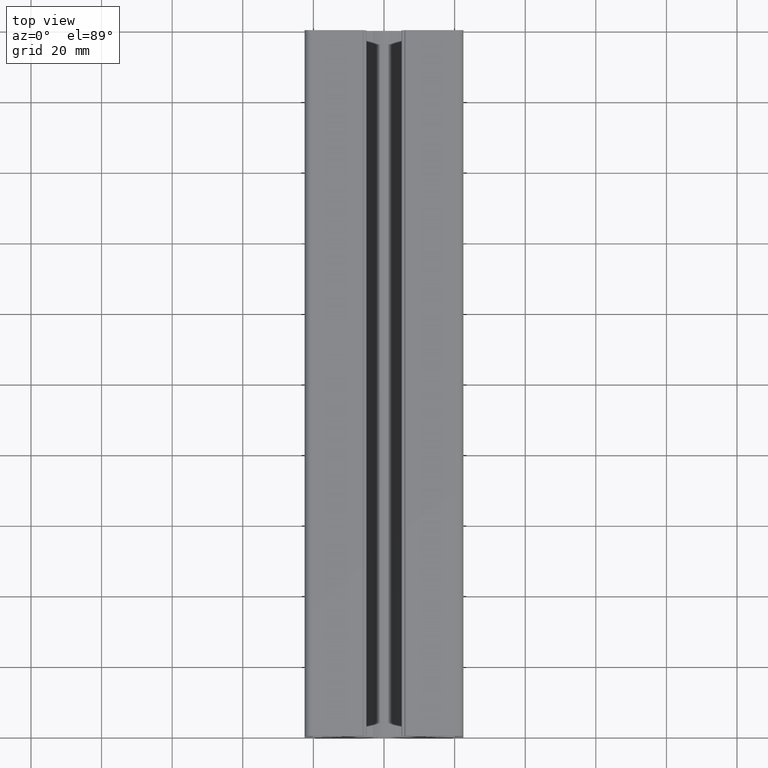
[diagram: clean part render]
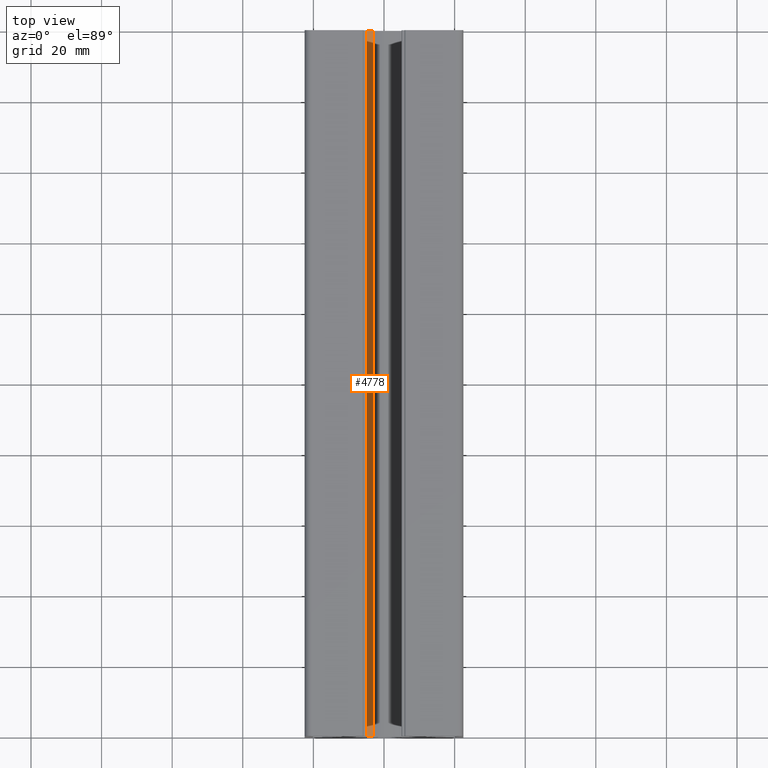
[diagram: same view with one face highlighted and labeled with its STEP entity id]
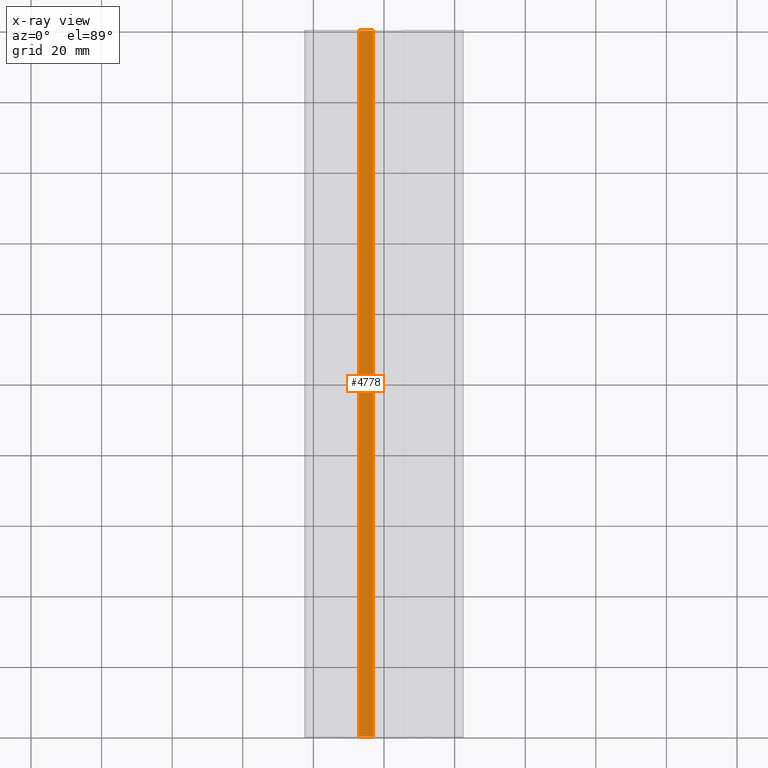
[diagram: x-ray of the same camera — body ghosted, the highlighted face saturated]
A machine part, top view. The second image highlights one B-rep face of the part: STEP entity #4778.
The next image is the same camera in x-ray: the body ghosted, the highlighted face saturated — about 0% of this face is hidden behind the body in this view.
In plain terms, the highlighted planar face has unit normal (-0, 0, 1).
Its self-contained STEP definition (entity closure, byte-faithful):
#197 = ORIENTED_EDGE ( 'NONE', *, *, #3471, .F. ) ;
#292 = CARTESIAN_POINT ( 'NONE',  ( -7.157215306522769700, 0.0000000000000000000, 1.999820312401750200 ) ) ;
#329 = CARTESIAN_POINT ( 'NONE',  ( -7.157215306522772400, 200.0000000000000000, 1.999820312401751500 ) ) ;
#339 = EDGE_CURVE ( 'NONE', #702, #2154, #3042, .T. ) ;
#343 = DIRECTION ( 'NONE',  ( -0.0000000000000000000, -1.000000000000000000, -0.0000000000000000000 ) ) ;
#373 = EDGE_CURVE ( 'NONE', #702, #1314, #3036, .T. ) ;
#492 = CARTESIAN_POINT ( 'NONE',  ( -7.157215306522767900, 0.0000000000000000000, 1.999820312401749700 ) ) ;
#494 = ORIENTED_EDGE ( 'NONE', *, *, #2412, .T. ) ;
#702 = VERTEX_POINT ( 'NONE', #329 ) ;
#854 = FACE_OUTER_BOUND ( 'NONE', #4816, .T. ) ;
#904 = PLANE ( 'NONE',  #3349 ) ;
#1163 = CARTESIAN_POINT ( 'NONE',  ( -5.329070518200750100E-014, 200.0000000000000000, 1.999820312401750200 ) ) ;
#1314 = VERTEX_POINT ( 'NONE', #492 ) ;
#1558 = DIRECTION ( 'NONE',  ( 1.000000000000000000, 0.0000000000000000000, 3.289076913218499900E-012 ) ) ;
#1694 = CARTESIAN_POINT ( 'NONE',  ( -7.157215306522769700, 0.0000000000000000000, 1.999820312401750200 ) ) ;
#1768 = DIRECTION ( 'NONE',  ( -3.289076913218499900E-012, 0.0000000000000000000, 1.000000000000000000 ) ) ;
#1886 = VECTOR ( 'NONE', #1558, 1000.000000000000000 ) ;
#2139 = VECTOR ( 'NONE', #343, 1000.000000000000000 ) ;
#2154 = VERTEX_POINT ( 'NONE', #2275 ) ;
#2227 = LINE ( 'NONE', #292, #1886 ) ;
#2275 = CARTESIAN_POINT ( 'NONE',  ( -3.122919853847287500, 200.0000000000000000, 1.999820312408385800 ) ) ;
#2412 = EDGE_CURVE ( 'NONE', #1314, #2664, #2227, .T. ) ;
#2458 = CARTESIAN_POINT ( 'NONE',  ( -7.157215306522769700, 0.0000000000000000000, 1.999820312401750200 ) ) ;
#2659 = ORIENTED_EDGE ( 'NONE', *, *, #339, .F. ) ;
#2664 = VERTEX_POINT ( 'NONE', #4712 ) ;
#2868 = LINE ( 'NONE', #3253, #2139 ) ;
#2920 = VECTOR ( 'NONE', #3654, 1000.000000000000000 ) ;
#3036 = LINE ( 'NONE', #2458, #5538 ) ;
#3042 = LINE ( 'NONE', #1163, #2920 ) ;
#3253 = CARTESIAN_POINT ( 'NONE',  ( -3.122919853827101000, 0.0000000000000000000, 1.999820312415022000 ) ) ;
#3349 = AXIS2_PLACEMENT_3D ( 'NONE', #1694, #1768, #3429 ) ;
#3429 = DIRECTION ( 'NONE',  ( 1.000000000000000000, 0.0000000000000000000, 3.289076913218499900E-012 ) ) ;
#3471 = EDGE_CURVE ( 'NONE', #2154, #2664, #2868, .T. ) ;
#3654 = DIRECTION ( 'NONE',  ( 1.000000000000000000, 0.0000000000000000000, -0.0000000000000000000 ) ) ;
#3670 = DIRECTION ( 'NONE',  ( -0.0000000000000000000, -1.000000000000000000, 0.0000000000000000000 ) ) ;
#3755 = ORIENTED_EDGE ( 'NONE', *, *, #373, .T. ) ;
#4712 = CARTESIAN_POINT ( 'NONE',  ( -3.122919853827105900, 0.0000000000000000000, 1.999820312415020200 ) ) ;
#4778 = ADVANCED_FACE ( 'NONE', ( #854 ), #904, .T. ) ;
#4816 = EDGE_LOOP ( 'NONE', ( #494, #197, #2659, #3755 ) ) ;
#5538 = VECTOR ( 'NONE', #3670, 1000.000000000000000 ) ;